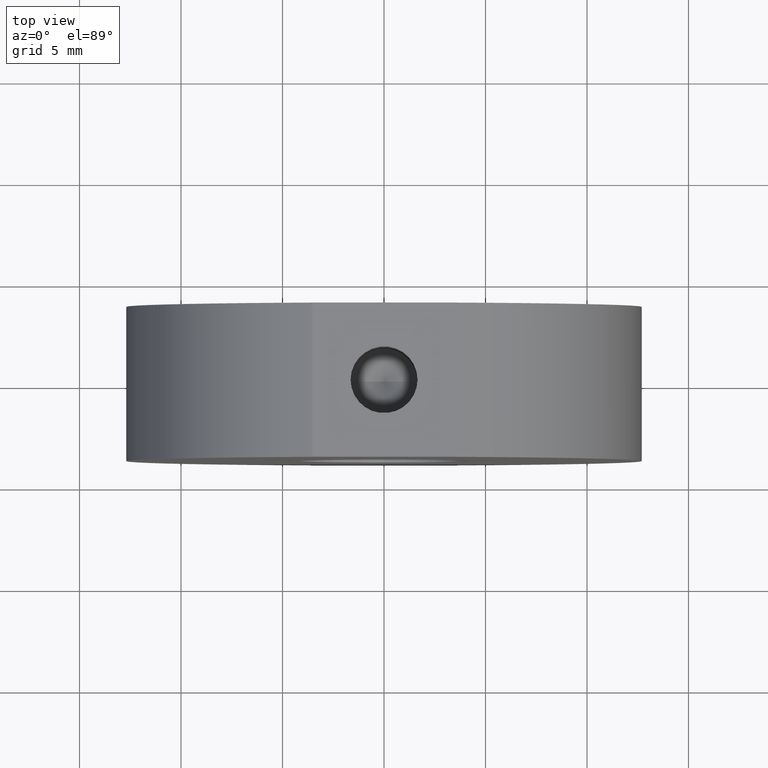
[diagram: clean part render]
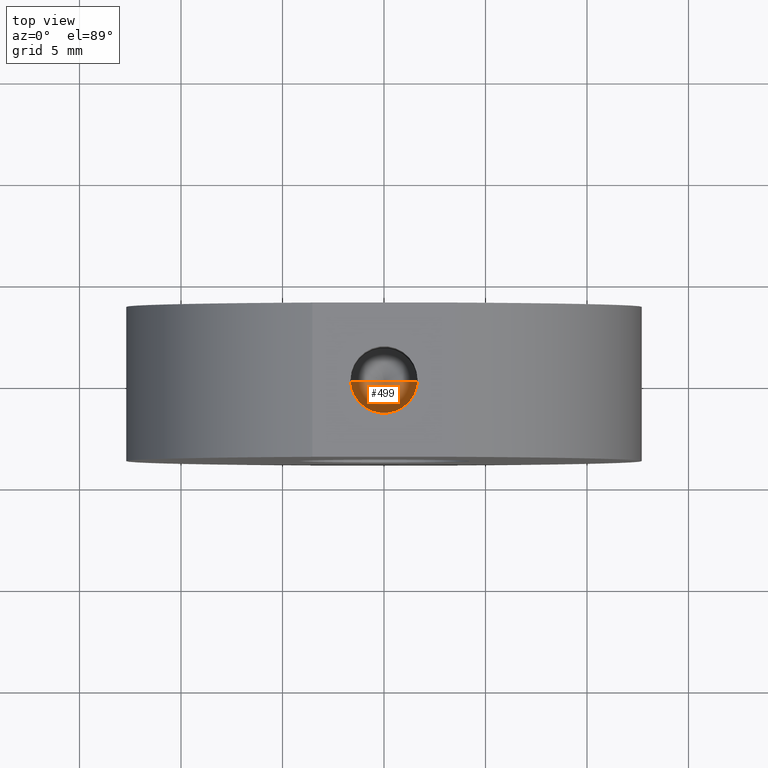
[diagram: same view with one face highlighted and labeled with its STEP entity id]
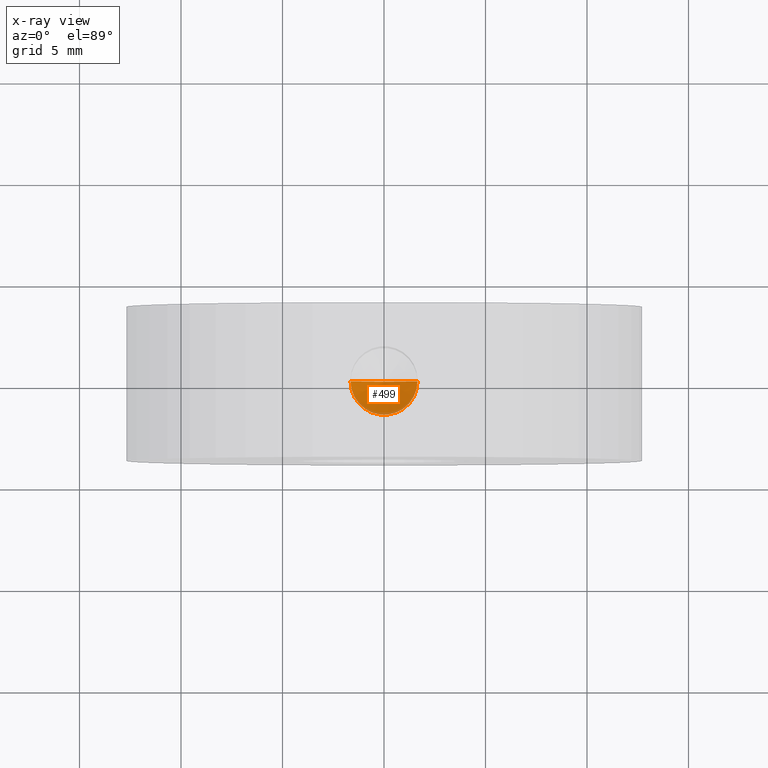
[diagram: x-ray of the same camera — body ghosted, the highlighted face saturated]
A machine part, top view. The second image highlights one B-rep face of the part: STEP entity #499.
The next image is the same camera in x-ray: the body ghosted, the highlighted face saturated — about 7% of this face is hidden behind the body in this view.
In plain terms, the highlighted conical surface has half-angle 60 deg.
Its self-contained STEP definition (entity closure, byte-faithful):
#7 = LINE ( 'NONE', #411, #253 ) ;
#27 = DIRECTION ( 'NONE',  ( 1.000000000000000000, 0.0000000000000000000, 0.0000000000000000000 ) ) ;
#39 = EDGE_CURVE ( 'NONE', #465, #491, #440, .T. ) ;
#52 = FACE_OUTER_BOUND ( 'NONE', #241, .T. ) ;
#57 = ORIENTED_EDGE ( 'NONE', *, *, #238, .T. ) ;
#58 = CIRCLE ( 'NONE', #209, 1.649999999999998800 ) ;
#73 = DIRECTION ( 'NONE',  ( -0.0000000000000000000, -0.0000000000000000000, 1.000000000000000000 ) ) ;
#82 = EDGE_CURVE ( 'NONE', #465, #171, #7, .T. ) ;
#151 = DIRECTION ( 'NONE',  ( 1.000000000000000000, 0.0000000000000000000, 0.0000000000000000000 ) ) ;
#155 = DIRECTION ( 'NONE',  ( -0.0000000000000000000, -0.0000000000000000000, 1.000000000000000000 ) ) ;
#163 = ORIENTED_EDGE ( 'NONE', *, *, #82, .F. ) ;
#171 = VERTEX_POINT ( 'NONE', #372 ) ;
#209 = AXIS2_PLACEMENT_3D ( 'NONE', #426, #73, #151 ) ;
#228 = CARTESIAN_POINT ( 'NONE',  ( 0.0000000000000000000, 0.0000000000000000000, 7.199999999999999300 ) ) ;
#238 = EDGE_CURVE ( 'NONE', #491, #171, #58, .T. ) ;
#241 = EDGE_LOOP ( 'NONE', ( #163, #255, #57 ) ) ;
#253 = VECTOR ( 'NONE', #296, 1000.000000000000000 ) ;
#255 = ORIENTED_EDGE ( 'NONE', *, *, #39, .T. ) ;
#296 = DIRECTION ( 'NONE',  ( 0.8660254037844381500, 0.0000000000000000000, 0.5000000000000008900 ) ) ;
#319 = DIRECTION ( 'NONE',  ( -0.8660254037844381500, 1.060575238724906300E-016, 0.5000000000000008900 ) ) ;
#320 = VECTOR ( 'NONE', #319, 1000.000000000000000 ) ;
#372 = CARTESIAN_POINT ( 'NONE',  ( 1.649999999999998800, 0.0000000000000000000, 7.199999999999999300 ) ) ;
#411 = CARTESIAN_POINT ( 'NONE',  ( 1.649999999999998800, 0.0000000000000000000, 7.199999999999999300 ) ) ;
#426 = CARTESIAN_POINT ( 'NONE',  ( 0.0000000000000000000, 0.0000000000000000000, 7.199999999999999300 ) ) ;
#437 = CONICAL_SURFACE ( 'NONE', #490, 1.649999999999998800, 1.047197551196596700 ) ;
#440 = LINE ( 'NONE', #442, #320 ) ;
#442 = CARTESIAN_POINT ( 'NONE',  ( -1.649999999999998800, 2.020667218593131300E-016, 7.199999999999999300 ) ) ;
#465 = VERTEX_POINT ( 'NONE', #512 ) ;
#490 = AXIS2_PLACEMENT_3D ( 'NONE', #228, #155, #27 ) ;
#491 = VERTEX_POINT ( 'NONE', #515 ) ;
#499 = ADVANCED_FACE ( 'NONE', ( #52 ), #437, .F. ) ;
#512 = CARTESIAN_POINT ( 'NONE',  ( -1.457973351666832800E-015, 0.0000000000000000000, 6.247372055837115700 ) ) ;
#515 = CARTESIAN_POINT ( 'NONE',  ( -1.649999999999998800, 2.020667218593131300E-016, 7.199999999999999300 ) ) ;